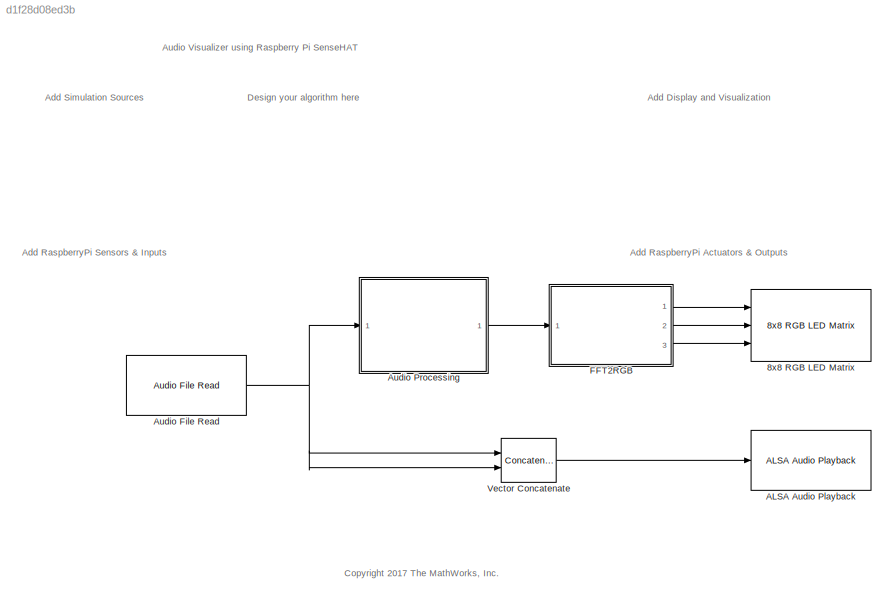
MODEL slx_d1f28d08ed3b
KIND model
CONFIG AbsTol = auto
CONFIG EnableMultiTasking = on
CONFIG FixedStep = auto
CONFIG MaxStep = auto
CONFIG MinStep = auto
CONFIG RelTol = 1e-3
CONFIG SampleTimeConstraint = Unconstrained
CONFIG Solver = ode45
CONFIG SolverName = ode45
CONFIG StartTime = 0.0
CONFIG StopTime = 10.0
BLOCK [Reference] 8x8 RGB LED Matrix  REF=sensehatlib/8x8 RGB LED Matrix

  Ports = [3]
  SourceBlock = sensehatlib/8x8 RGB LED Matrix
  SourceProductBaseCode = RASPPI
  SourceProductName = Simulink Support Package for Raspberry Pi Hardware
  SourceType = 8x8 RGB LED Matrix
BLOCK [Reference] ALSA Audio Playback  REF=embdlinuxlib/ALSA Audio Playback
  Ports = [1]
  SourceBlock = embdlinuxlib/ALSA Audio Playback
  SourceProductBaseCode = RASPPI
  SourceProductName = Simulink Support Package for Raspberry Pi Hardware
  SourceType = codertarget.linux.blocks.ALSAAudioPlayback
BLOCK [Reference] Audio File Read  REF=raspberrypilib/Audio File Read
  Ports = [0, 1]
  SourceBlock = raspberrypilib/Audio File Read
  SourceProductBaseCode = RASPPI
  SourceProductName = Simulink Support Package for Raspberry Pi Hardware
  SourceType = Audio File Read
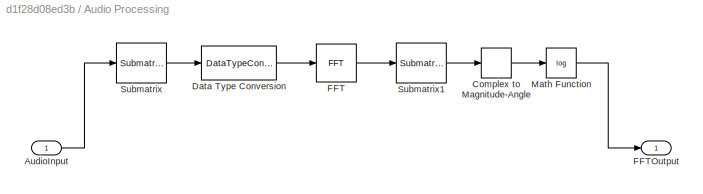
BLOCK [SubSystem] Audio Processing
  Ports = [1, 1]
  RequestExecContextInheritance = off
BLOCK [Inport] Audio Processing/AudioInput
  IconDisplay = Port number
BLOCK [ComplexToMagnitudeAngle] Audio Processing/Complex to Magnitude-Angle
  Output = Magnitude
  Ports = [1, 1]
BLOCK [DataTypeConversion] Audio Processing/Data Type Conversion
  OutDataTypeStr = single
  RndMeth = Floor
  SaturateOnIntegerOverflow = off
BLOCK [Reference] Audio Processing/FFT  REF=dspxfrm3/FFT
  Ports = [1, 1]
  SourceBlock = dspxfrm3/FFT
  SourceProductBaseCode = DS
  SourceProductName = DSP System Toolbox
  SourceType = FFT
BLOCK [Outport] Audio Processing/FFTOutput
  IconDisplay = Port number
BLOCK [Math] Audio Processing/Math Function
  Operator = log
  Ports = [1, 1]
BLOCK [Reference] Audio Processing/Submatrix  REF=dspmtrx3/Submatrix
  Ports = [1, 1]
  SourceBlock = dspmtrx3/Submatrix
  SourceProductBaseCode = DS
  SourceProductName = DSP System Toolbox
  SourceType = Submatrix
BLOCK [Reference] Audio Processing/Submatrix1  REF=dspmtrx3/Submatrix
  Ports = [1, 1]
  SourceBlock = dspmtrx3/Submatrix
  SourceProductBaseCode = DS
  SourceProductName = DSP System Toolbox
  SourceType = Submatrix
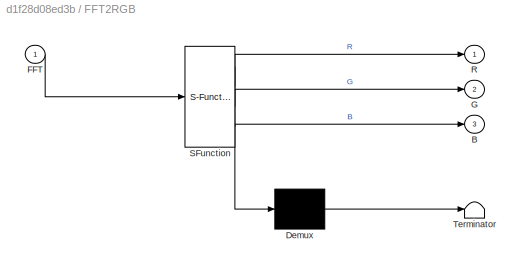
BLOCK [SubSystem] FFT2RGB
  ErrorFcn = Stateflow.Translate.translate
  PermitHierarchicalResolution = ExplicitOnly
  Ports = [1, 3]
  RequestExecContextInheritance = off
  SFBlockType = MATLAB Function
  TreatAsAtomicUnit = on
BLOCK [Demux] FFT2RGB/ Demux 
  Outputs = 1
  Ports = [1, 1]
BLOCK [S-Function] FFT2RGB/ SFunction 
  EnableBusSupport = off
  FunctionName = sf_sfun
  PortCounts = [1 4]
  Ports = [1, 4]
  SFcnIsStateOwnerBlock = off
  SFunctionDeploymentMode = off
  Tag = Stateflow S-Function raspberrypi_audioVisualizer 1
BLOCK [Terminator] FFT2RGB/ Terminator 
BLOCK [Outport] FFT2RGB/B
  IconDisplay = Port number
  Port = 3
BLOCK [Inport] FFT2RGB/FFT
  IconDisplay = Port number
BLOCK [Outport] FFT2RGB/G
  IconDisplay = Port number
  Port = 2
BLOCK [Outport] FFT2RGB/R
  IconDisplay = Port number
BLOCK [Concatenate] Vector Concatenate
  ConcatenateDimension = 2
  Mode = Multidimensional array
  Ports = [2, 1]
ANNOTATION (root): Add Display and Visualization
ANNOTATION (root): Add RaspberryPi Actuators & Outputs
ANNOTATION (root): Add RaspberryPi Sensors & Inputs
ANNOTATION (root): Add Simulation Sources
ANNOTATION (root): Audio Visualizer using Raspberry Pi SenseHAT
ANNOTATION (root): <copyright redacted>
ANNOTATION (root): Design your algorithm here
NET Audio File Read:1 -> Audio Processing:1, Vector Concatenate:1, Vector Concatenate:2
LINE Audio Processing/AudioInput:1 -> Audio Processing/Submatrix:1
LINE Audio Processing/Complex to Magnitude-Angle:1 -> Audio Processing/Math Function:1
LINE Audio Processing/Data Type Conversion:1 -> Audio Processing/FFT:1
LINE Audio Processing/FFT:1 -> Audio Processing/Submatrix1:1
LINE Audio Processing/Math Function:1 -> Audio Processing/FFTOutput:1
LINE Audio Processing/Submatrix1:1 -> Audio Processing/Complex to Magnitude-Angle:1
LINE Audio Processing/Submatrix:1 -> Audio Processing/Data Type Conversion:1
LINE Audio Processing:1 -> FFT2RGB:1
LINE FFT2RGB:1 -> 8x8 RGB LED Matrix:1
LINE FFT2RGB:2 -> 8x8 RGB LED Matrix:2
LINE FFT2RGB:3 -> 8x8 RGB LED Matrix:3
LINE Vector Concatenate:1 -> ALSA Audio Playback:1
note: NET lines group one-source signal fan-out (src -> all destinations, sorted); 1:1 wires keep LINE
CHART FFT2RGB states=1 transitions=1
  STATE_LABEL 'eML_blk_kernel()'
  STATE_LABEL "SCRIPT:\nfunction [R,G,B] = FFT2RGB(FFT)\n% Map the freqency spectrum to 8x8 led matrix in SenseHAT\n% Algorithm:\n% 1024 samples from frequency response is mapped to 8x8 matrix.\n% Divide the fft output into 8 groups with 128 samples each.\n% \n% Define maximum value for Decibels relative to full scale(dbFS)\ndbFSMaxVal = 7;\n% Reshape the 1024x1 fft output to 128x8 \nfreqMatrix = reshape(FFT,[128,8])';\n% ...<+1774ch>"
